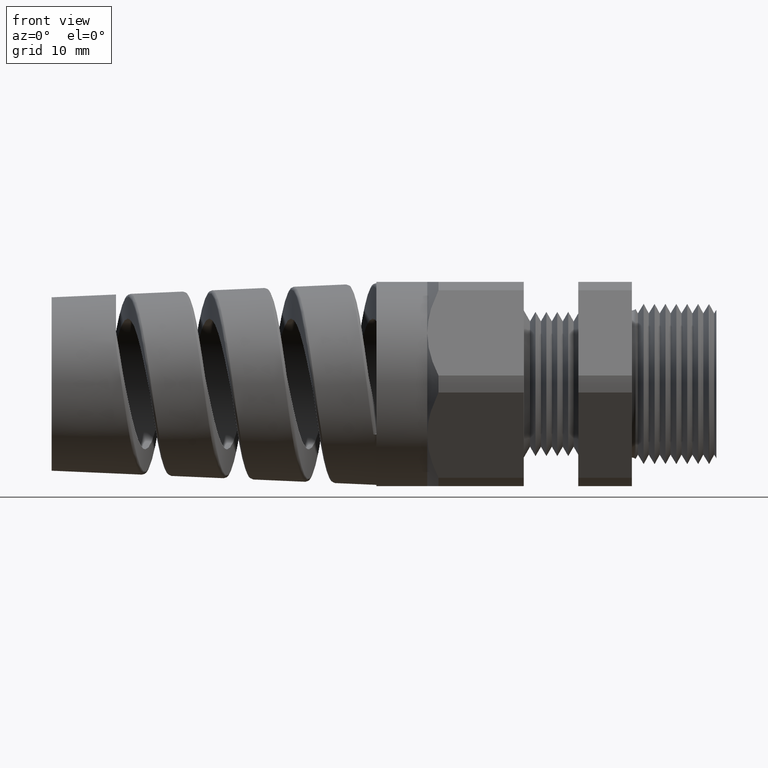
[diagram: clean part render]
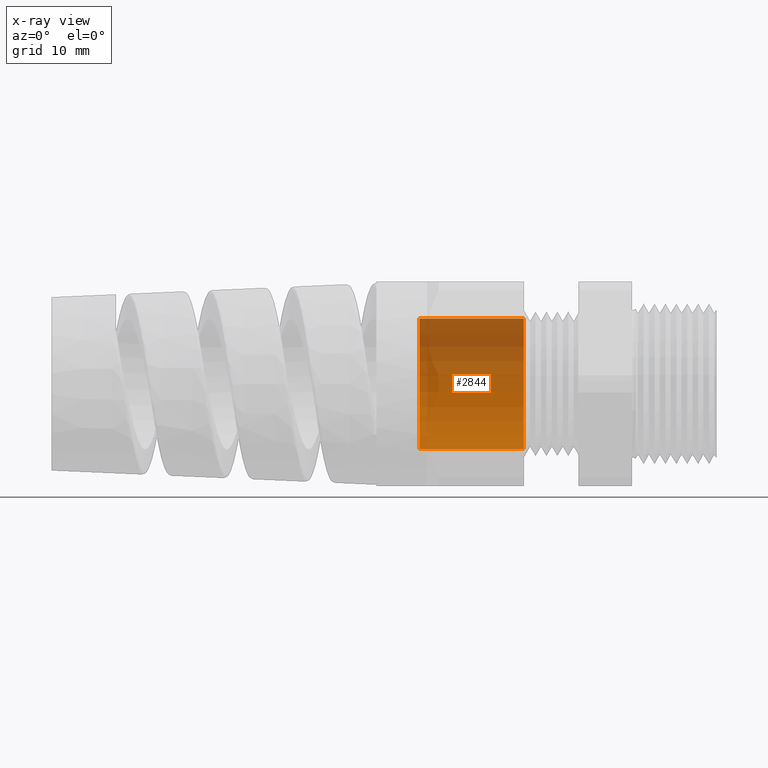
[diagram: x-ray — body ghosted, one internal face saturated and labeled with its STEP entity id]
A machine part, front view, then the same camera in x-ray: the body is ghosted and one INTERNAL B-rep face — a face not visible from any outside direction — is saturated and labeled: STEP entity #2844.
In plain terms, the highlighted cylindrical surface (partial cylindrical patch) has radius 6.096 mm, axis along (1, 0, 0).
Its self-contained STEP definition (entity closure, byte-faithful):
#1564 = CARTESIAN_POINT ( 'NONE',  ( -0.7069291338582677200, 2.939152317953647400E-017, 0.2399999999999999900 ) ) ;
#1577 = CARTESIAN_POINT ( 'NONE',  ( -0.7069291338582677200, 0.0000000000000000000, -0.2399999999999999600 ) ) ;
#1625 = CARTESIAN_POINT ( 'NONE',  ( -0.7069291338582677200, 0.0000000000000000000, 0.0000000000000000000 ) ) ;
#1626 = AXIS2_PLACEMENT_3D ( 'NONE', #1625, #2967, #2984 ) ;
#1627 = CIRCLE ( 'NONE', #1626, 0.2399999999999999600 ) ;
#1629 = AXIS2_PLACEMENT_3D ( 'NONE', #1688, #1687, #1686 ) ;
#1630 = CIRCLE ( 'NONE', #1629, 0.2399999999999999100 ) ;
#1631 = CARTESIAN_POINT ( 'NONE',  ( -1.089999999999999900, 0.0000000000000000000, -0.2399999999999999100 ) ) ;
#1632 = DIRECTION ( 'NONE',  ( 0.0000000000000000000, 0.0000000000000000000, -1.000000000000000000 ) ) ;
#1633 = DIRECTION ( 'NONE',  ( 1.000000000000000000, 0.0000000000000000000, 0.0000000000000000000 ) ) ;
#1634 = CARTESIAN_POINT ( 'NONE',  ( 0.0000000000000000000, 0.0000000000000000000, 0.0000000000000000000 ) ) ;
#1635 = AXIS2_PLACEMENT_3D ( 'NONE', #1634, #1633, #1632 ) ;
#1636 = CYLINDRICAL_SURFACE ( 'NONE', #1635, 0.2399999999999999400 ) ;
#1637 = FACE_OUTER_BOUND ( 'NONE', #2833, .T. ) ;
#1649 = DIRECTION ( 'NONE',  ( 1.000000000000000000, 0.0000000000000000000, 0.0000000000000000000 ) ) ;
#1650 = VECTOR ( 'NONE', #1649, 39.37007874015748100 ) ;
#1651 = CARTESIAN_POINT ( 'NONE',  ( 0.0000000000000000000, 2.939152317953646700E-017, 0.2399999999999999400 ) ) ;
#1655 = LINE ( 'NONE', #1651, #1650 ) ;
#1686 = DIRECTION ( 'NONE',  ( 0.0000000000000000000, 0.0000000000000000000, -1.000000000000000000 ) ) ;
#1687 = DIRECTION ( 'NONE',  ( 1.000000000000000000, 0.0000000000000000000, 0.0000000000000000000 ) ) ;
#1688 = CARTESIAN_POINT ( 'NONE',  ( -1.089999999999999900, 0.0000000000000000000, 0.0000000000000000000 ) ) ;
#1802 = CARTESIAN_POINT ( 'NONE',  ( 0.0000000000000000000, 0.0000000000000000000, -0.2399999999999999400 ) ) ;
#1807 = LINE ( 'NONE', #1802, #1876 ) ;
#1875 = DIRECTION ( 'NONE',  ( 1.000000000000000000, 0.0000000000000000000, 0.0000000000000000000 ) ) ;
#1876 = VECTOR ( 'NONE', #1875, 39.37007874015748100 ) ;
#1932 = CARTESIAN_POINT ( 'NONE',  ( -1.089999999999999900, 2.939152317953646700E-017, 0.2399999999999999100 ) ) ;
#2818 = VERTEX_POINT ( 'NONE', #1577 ) ;
#2826 = VERTEX_POINT ( 'NONE', #1564 ) ;
#2830 = ORIENTED_EDGE ( 'NONE', *, *, #2831, .F. ) ;
#2831 = EDGE_CURVE ( 'NONE', #2818, #2826, #1627, .T. ) ;
#2833 = EDGE_LOOP ( 'NONE', ( #2834, #2835, #2830, #3030 ) ) ;
#2834 = ORIENTED_EDGE ( 'NONE', *, *, #2854, .T. ) ;
#2835 = ORIENTED_EDGE ( 'NONE', *, *, #2838, .T. ) ;
#2838 = EDGE_CURVE ( 'NONE', #3043, #2826, #1655, .T. ) ;
#2844 = ADVANCED_FACE ( 'NONE', ( #1637 ), #1636, .T. ) ;
#2849 = VERTEX_POINT ( 'NONE', #1631 ) ;
#2854 = EDGE_CURVE ( 'NONE', #2849, #3043, #1630, .T. ) ;
#2967 = DIRECTION ( 'NONE',  ( 1.000000000000000000, 0.0000000000000000000, 0.0000000000000000000 ) ) ;
#2984 = DIRECTION ( 'NONE',  ( 0.0000000000000000000, 0.0000000000000000000, -1.000000000000000000 ) ) ;
#3016 = EDGE_CURVE ( 'NONE', #2849, #2818, #1807, .T. ) ;
#3030 = ORIENTED_EDGE ( 'NONE', *, *, #3016, .F. ) ;
#3043 = VERTEX_POINT ( 'NONE', #1932 ) ;